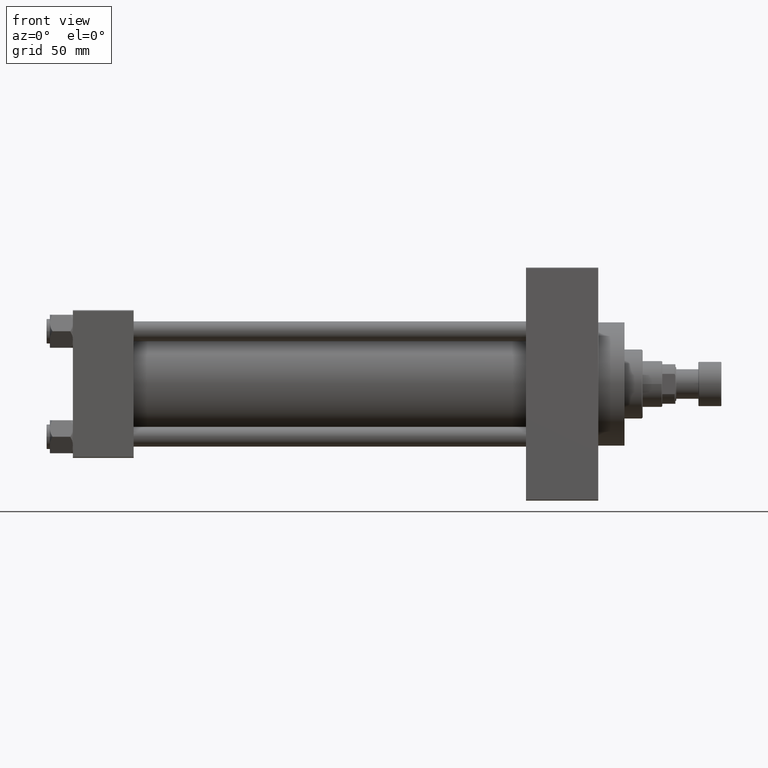
[diagram: clean part render]
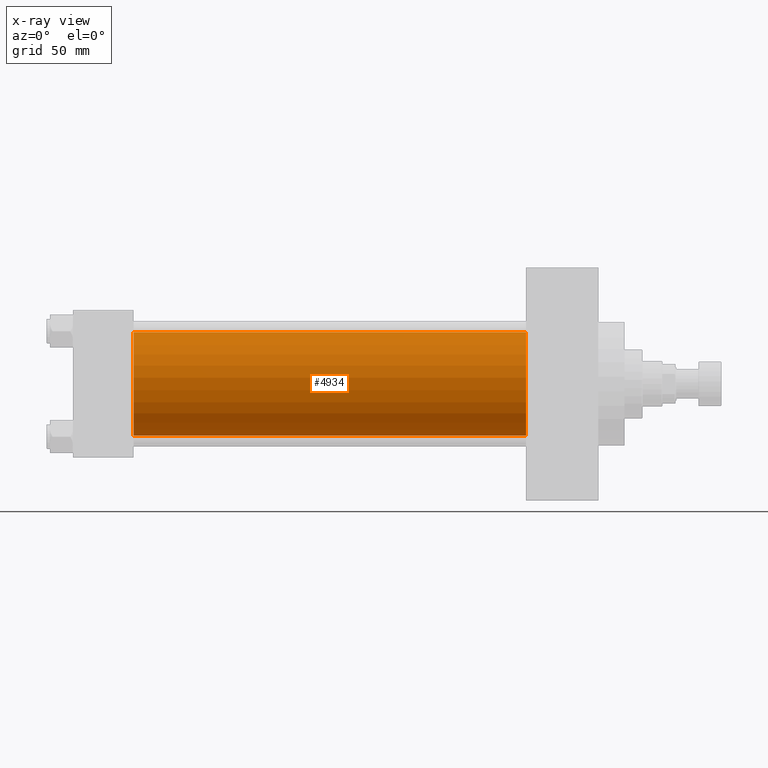
[diagram: x-ray — body ghosted, one internal face saturated and labeled with its STEP entity id]
A machine part, front view, then the same camera in x-ray: the body is ghosted and one INTERNAL B-rep face — a face not visible from any outside direction — is saturated and labeled: STEP entity #4934.
In plain terms, the highlighted cylindrical surface (partial cylindrical patch) has radius 31.5 mm, axis along (-1, -0, -0).
Its self-contained STEP definition (entity closure, byte-faithful):
#625 = CYLINDRICAL_SURFACE ( 'NONE', #8908, 31.50000000000000000 ) ;
#727 = CIRCLE ( 'NONE', #11973, 31.50000000000000000 ) ;
#1134 = CARTESIAN_POINT ( 'NONE',  ( 37.00000000000000000, -2.602085213965210642E-15, 31.50000000000000000 ) ) ;
#1387 = VERTEX_POINT ( 'NONE', #21286 ) ;
#1950 = CARTESIAN_POINT ( 'NONE',  ( 275.9999999999999432, -2.602085213965210642E-15, 0.000000000000000000 ) ) ;
#3526 = ORIENTED_EDGE ( 'NONE', *, *, #32612, .F. ) ;
#4833 = VERTEX_POINT ( 'NONE', #1134 ) ;
#4934 = ADVANCED_FACE ( 'NONE', ( #35102 ), #625, .F. ) ;
#6312 = LINE ( 'NONE', #25682, #31256 ) ;
#6363 = DIRECTION ( 'NONE',  ( 0.000000000000000000, 0.000000000000000000, -1.000000000000000000 ) ) ;
#6782 = CARTESIAN_POINT ( 'NONE',  ( 275.9999999999999432, -2.602085213965210642E-15, 31.50000000000000000 ) ) ;
#8428 = DIRECTION ( 'NONE',  ( 0.000000000000000000, 0.000000000000000000, 1.000000000000000000 ) ) ;
#8908 = AXIS2_PLACEMENT_3D ( 'NONE', #15980, #42908, #8428 ) ;
#10730 = AXIS2_PLACEMENT_3D ( 'NONE', #1950, #43971, #17050 ) ;
#11189 = CARTESIAN_POINT ( 'NONE',  ( 275.9999999999999432, -2.602085213965210642E-15, 31.50000000000000000 ) ) ;
#11973 = AXIS2_PLACEMENT_3D ( 'NONE', #18204, #25490, #6363 ) ;
#14805 = EDGE_CURVE ( 'NONE', #42416, #39954, #39657, .T. ) ;
#15980 = CARTESIAN_POINT ( 'NONE',  ( 275.9999999999999432, -2.602085213965210642E-15, 0.000000000000000000 ) ) ;
#17050 = DIRECTION ( 'NONE',  ( 0.000000000000000000, 0.000000000000000000, -1.000000000000000000 ) ) ;
#18204 = CARTESIAN_POINT ( 'NONE',  ( 37.00000000000000000, -2.602085213965210642E-15, 0.000000000000000000 ) ) ;
#18740 = EDGE_CURVE ( 'NONE', #42416, #4833, #34836, .T. ) ;
#21286 = CARTESIAN_POINT ( 'NONE',  ( 37.00000000000000000, 1.255552203348951061E-15, -31.50000000000000000 ) ) ;
#22049 = ORIENTED_EDGE ( 'NONE', *, *, #18740, .F. ) ;
#25439 = EDGE_LOOP ( 'NONE', ( #48759, #36702, #3526, #22049 ) ) ;
#25490 = DIRECTION ( 'NONE',  ( 1.000000000000000000, 0.000000000000000000, 0.000000000000000000 ) ) ;
#25682 = CARTESIAN_POINT ( 'NONE',  ( 275.9999999999999432, 1.255552203348951061E-15, -31.50000000000000000 ) ) ;
#29727 = EDGE_CURVE ( 'NONE', #39954, #1387, #6312, .T. ) ;
#31256 = VECTOR ( 'NONE', #44827, 1000.000000000000000 ) ;
#32612 = EDGE_CURVE ( 'NONE', #4833, #1387, #727, .T. ) ;
#34836 = LINE ( 'NONE', #11189, #44610 ) ;
#35102 = FACE_OUTER_BOUND ( 'NONE', #25439, .T. ) ;
#36702 = ORIENTED_EDGE ( 'NONE', *, *, #29727, .T. ) ;
#39657 = CIRCLE ( 'NONE', #10730, 31.50000000000000000 ) ;
#39954 = VERTEX_POINT ( 'NONE', #46096 ) ;
#42416 = VERTEX_POINT ( 'NONE', #6782 ) ;
#42908 = DIRECTION ( 'NONE',  ( -1.000000000000000000, -0.000000000000000000, -0.000000000000000000 ) ) ;
#43971 = DIRECTION ( 'NONE',  ( 1.000000000000000000, 0.000000000000000000, 0.000000000000000000 ) ) ;
#44610 = VECTOR ( 'NONE', #49666, 1000.000000000000000 ) ;
#44827 = DIRECTION ( 'NONE',  ( -1.000000000000000000, -0.000000000000000000, -0.000000000000000000 ) ) ;
#46096 = CARTESIAN_POINT ( 'NONE',  ( 275.9999999999999432, 1.255552203348951061E-15, -31.50000000000000000 ) ) ;
#48759 = ORIENTED_EDGE ( 'NONE', *, *, #14805, .T. ) ;
#49666 = DIRECTION ( 'NONE',  ( -1.000000000000000000, -0.000000000000000000, -0.000000000000000000 ) ) ;